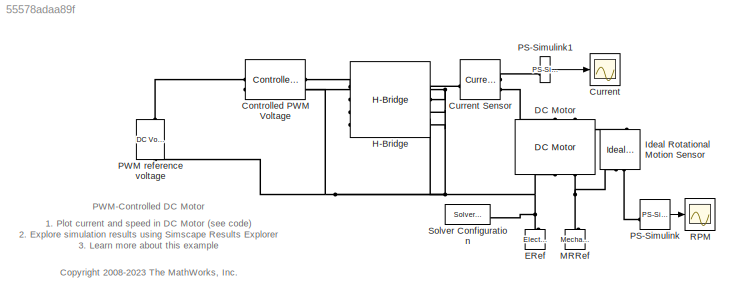
MODEL slx_55578adaa89f
KIND model
CONFIG AbsTol = 1e-3
CONFIG EnableMultiTasking = on
CONFIG FixedStep = auto
CONFIG MaxStep = auto
CONFIG MinStep = auto
CONFIG RelTol = 1e-3
CONFIG SampleTimeConstraint = Unconstrained
CONFIG SolverName = ode15s
CONFIG StartTime = 0.0
CONFIG StopTime = 10
BLOCK [Reference] Controlled PWM Voltage  REF=ee_lib/Integrated Circuits/Controlled PWM
Voltage
  SourceBlock = ee_lib/Integrated Circuits/Controlled PWM\nVoltage
  SourceType = Controlled PWM\nVoltage
BLOCK [Scope] Current
  Floating = off
  NumInputPorts = 1
  ScopeSpecificationString = Simulink.scopes.TimeScopeBlockCfg('CurrentConfiguration', extmgr.ConfigurationSet(extmgr.Configuration('Core','General UI',true),extmgr.Configuration('Core','Source UI',true),extmgr.Configuration('Sources','WiredSimulink',true,'DataLogging',true,'DataLoggingVariableName','RPM','DataLoggingSaveFormat','StructureWithTime','DataLoggingDecimation','1','DataLoggingDecimateData',true),extmgr.Configurati...<+1688ch>
BLOCK [Reference] Current Sensor  REF=fl_lib/Electrical/Electrical Sensors/Current Sensor
  NameLocation = top
  SourceBlock = fl_lib/Electrical/Electrical Sensors/Current Sensor
  SourceType = Current Sensor
BLOCK [Reference] DC Motor  REF=ee_lib/Electromechanical/Brushed Motors/DC Motor
  NameLocation = left
  SourceBlock = ee_lib/Electromechanical/Brushed Motors/DC Motor
  SourceType = DC Motor
BLOCK [Reference] ERef  REF=fl_lib/Electrical/Electrical Elements/Electrical Reference
  NameLocation = left
  SourceBlock = fl_lib/Electrical/Electrical Elements/Electrical Reference
  SourceType = Electrical Reference
BLOCK [Reference] H-Bridge  REF=ee_lib/Semiconductors &
Converters/Converters/H-Bridge
  SourceBlock = ee_lib/Semiconductors &\nConverters/Converters/H-Bridge
  SourceType = H-Bridge
BLOCK [Reference] Ideal Rotational Motion Sensor  REF=fl_lib/Mechanical/Mechanical Sensors/Ideal Rotational
Motion Sensor
  NameLocation = right
  SourceBlock = fl_lib/Mechanical/Mechanical Sensors/Ideal Rotational\nMotion Sensor
  SourceType = Ideal Rotational\nMotion Sensor
BLOCK [Reference] MRRef  REF=fl_lib/Mechanical/Rotational Elements/Mechanical
Rotational Reference
  NameLocation = right
  SourceBlock = fl_lib/Mechanical/Rotational Elements/Mechanical\nRotational Reference
  SourceType = Mechanical\nRotational Reference
BLOCK [Reference] PS-Simulink  REF=nesl_utility/PS-Simulink
Converter
  SourceBlock = nesl_utility/PS-Simulink\nConverter
  SourceType = PS-Simulink\nConverter
BLOCK [Reference] PS-Simulink1  REF=nesl_utility/PS-Simulink
Converter
  SourceBlock = nesl_utility/PS-Simulink\nConverter
  SourceType = PS-Simulink\nConverter
BLOCK [Reference] PWM reference voltage  REF=fl_lib/Electrical/Electrical Sources/DC Voltage Source
  NameLocation = right
  SourceBlock = fl_lib/Electrical/Electrical Sources/DC Voltage Source
  SourceType = DC Voltage Source
BLOCK [Scope] RPM
  Floating = off
  NumInputPorts = 1
  ScopeSpecificationString = Simulink.scopes.TimeScopeBlockCfg('CurrentConfiguration', extmgr.ConfigurationSet(extmgr.Configuration('Core','General UI',true),extmgr.Configuration('Core','Source UI',true),extmgr.Configuration('Sources','WiredSimulink',true,'DataLogging',true,'DataLoggingVariableName','RPM1','DataLoggingSaveFormat','StructureWithTime','DataLoggingDecimation','1','DataLoggingDecimateData',true),extmgr.Configurat...<+1630ch>
BLOCK [Reference] Solver Configuration  REF=nesl_utility/Solver
Configuration
  SourceBlock = nesl_utility/Solver\nConfiguration
  SourceType = Solver\nConfiguration
ANNOTATION (root): 1. Plot current and speed in DC Motor ( see code ) 2. Explore simulation results using Simscape Results Explorer 3. Learn more about this example
ANNOTATION (root): <copyright redacted>
ANNOTATION (root): PWM-Controlled DC Motor
LINE PS-Simulink1:1 -> Current:1
LINE PS-Simulink:1 -> RPM:1
PLINE Controlled PWM Voltage:LConn1 -- PWM reference voltage:LConn1
PNET net1: Controlled PWM Voltage:LConn2 -- Controlled PWM Voltage:RConn2 -- DC Motor:RConn1 -- ERef:LConn1 -- H-Bridge:LConn2 -- H-Bridge:LConn3 -- H-Bridge:LConn4 -- H-Bridge:RConn2 -- PWM reference voltage:RConn1 -- Solver Configuration:RConn1
PLINE Controlled PWM Voltage:RConn1 -- H-Bridge:LConn1
PLINE Current Sensor:LConn1 -- H-Bridge:RConn1
PLINE Current Sensor:RConn1 -- PS-Simulink1:LConn1
PLINE Current Sensor:RConn2 -- DC Motor:LConn1
PLINE DC Motor:LConn2 -- Ideal Rotational Motion Sensor:LConn1
PNET net2: DC Motor:RConn2 -- Ideal Rotational Motion Sensor:RConn1 -- MRRef:LConn1
PLINE Ideal Rotational Motion Sensor:RConn2 -- PS-Simulink:LConn1
note: PNET lines group multi-terminal physical nets as a canonical sorted terminal list (undirected conserving connections); 2-terminal nets keep the pairwise PLINE form
